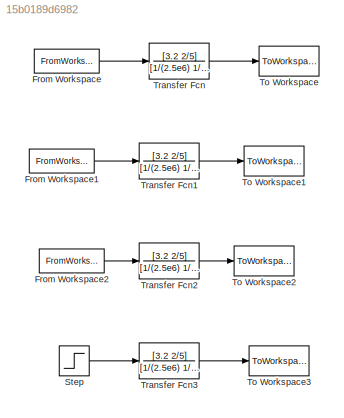
MODEL slx_15b0189d6982
KIND model
CONFIG AbsTol = auto
CONFIG EnableMultiTasking = off
CONFIG FixedStep = auto
CONFIG MaxStep = auto
CONFIG MinStep = auto
CONFIG RelTol = 1e-3
CONFIG SampleTimeConstraint = Unconstrained
CONFIG Solver = VariableStepAuto
CONFIG SolverName = VariableStepAuto
CONFIG StartTime = 0.0
CONFIG StopTime = 10.0
BLOCK [FromWorkspace] From Workspace
  SampleTime = 0
  VariableName = triangle
  ZeroCross = on
BLOCK [FromWorkspace] From Workspace1
  SampleTime = 0
  VariableName = P_triangle
  ZeroCross = on
BLOCK [FromWorkspace] From Workspace2
  SampleTime = 0
  VariableName = SR
  ZeroCross = on
BLOCK [Step] Step
  After = 15/80
  SampleTime = 0
  Time = 0
BLOCK [ToWorkspace] To Workspace
  FixptAsFi = on
  MaxDataPoints = inf
  Ports = [1]
  SampleTime = -1
  SaveFormat = Timeseries
  VariableName = Stress
BLOCK [ToWorkspace] To Workspace1
  FixptAsFi = on
  MaxDataPoints = inf
  Ports = [1]
  SampleTime = -1
  SaveFormat = Timeseries
  VariableName = P_Stress
BLOCK [ToWorkspace] To Workspace2
  FixptAsFi = on
  MaxDataPoints = inf
  Ports = [1]
  SampleTime = -1
  SaveFormat = Timeseries
  VariableName = SR_Output
BLOCK [ToWorkspace] To Workspace3
  FixptAsFi = on
  MaxDataPoints = inf
  Ports = [1]
  SampleTime = -1
  SaveFormat = Timeseries
  VariableName = Simu_SR_Output
BLOCK [TransferFcn] Transfer Fcn
  Denominator = [1/(2.5e6) 1/(13.75e6)]
  Numerator = [3.2 2/5]
BLOCK [TransferFcn] Transfer Fcn1
  Denominator = [1/(2.5e6) 1/(13.75e6)]
  Numerator = [3.2 2/5]
BLOCK [TransferFcn] Transfer Fcn2
  Denominator = [1/(2.5e6) 1/(13.75e6)]
  Numerator = [3.2 2/5]
BLOCK [TransferFcn] Transfer Fcn3
  Denominator = [1/(2.5e6) 1/(13.75e6)]
  Numerator = [3.2 2/5]
LINE From Workspace1:1 -> Transfer Fcn1:1
LINE From Workspace2:1 -> Transfer Fcn2:1
LINE From Workspace:1 -> Transfer Fcn:1
LINE Step:1 -> Transfer Fcn3:1
LINE Transfer Fcn1:1 -> To Workspace1:1
LINE Transfer Fcn2:1 -> To Workspace2:1
LINE Transfer Fcn3:1 -> To Workspace3:1
LINE Transfer Fcn:1 -> To Workspace:1
